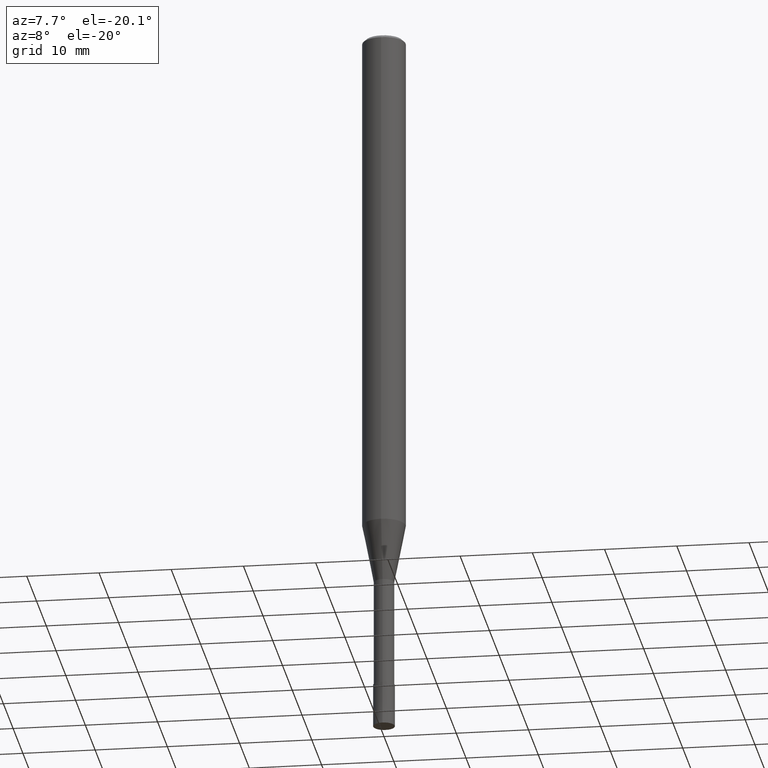
[diagram: clean part render]
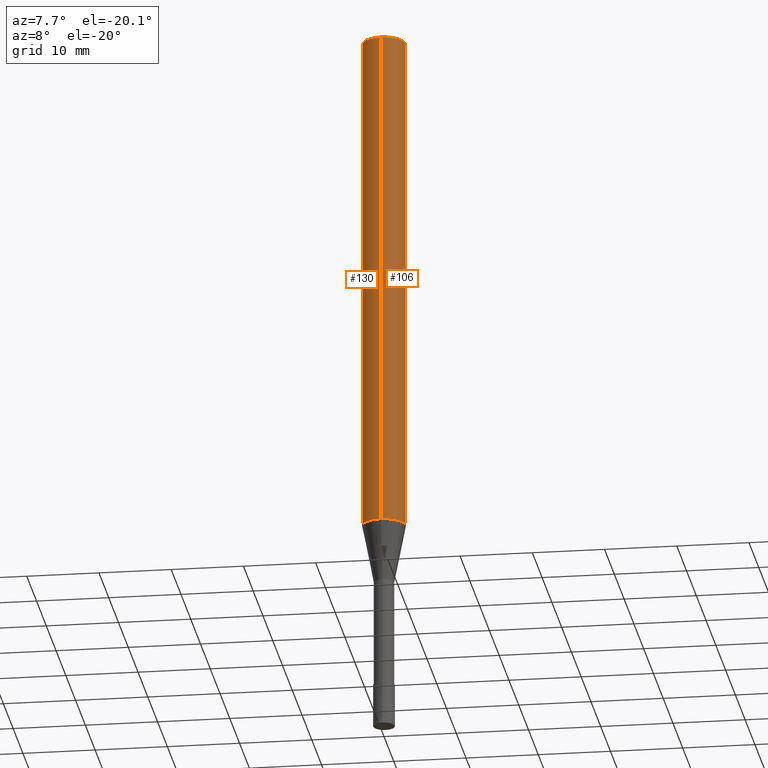
[diagram: same view with one multi-face feature highlighted, each face labeled with its STEP entity id]
A machine part, auxiliary view. The highlighted faces form ONE feature: a constant-radius fillet chain: 2 tangent blend faces with common blend radius 3 mm. The faces share edges in the B-rep.
Their STEP definitions:
[1] entity #130 (Cylinder):
#94=EDGE_CURVE('',#208,#142,#232,.T.);
#104=VERTEX_POINT('',#243);
#130=ADVANCED_FACE('',(#273),#274,.T.);
#142=VERTEX_POINT('',#288);
#154=EDGE_CURVE('',#142,#104,#301,.T.);
#172=VERTEX_POINT('',#320);
#192=EDGE_CURVE('',#208,#172,#344,.T.);
#200=EDGE_CURVE('',#104,#172,#352,.T.);
#208=VERTEX_POINT('',#361);
#232=LINE('',#378,#379);
#243=CARTESIAN_POINT('',(0.0,3.0,-0.400000000000006));
#273=FACE_OUTER_BOUND('',#427,.T.);
#274=CYLINDRICAL_SURFACE('',#428,3.0);
#288=CARTESIAN_POINT('',(3.67381906146713E-016,-3.0,-0.400000000000006));
#301=CIRCLE('',#463,3.0);
#320=CARTESIAN_POINT('',(0.0,3.0,-70.769));
#344=CIRCLE('',#520,3.0);
#352=LINE('',#529,#530);
#361=CARTESIAN_POINT('',(3.67381906146713E-016,-3.0,-70.769));
#378=CARTESIAN_POINT('',(3.67381906146713E-016,-3.0,-35.5845));
#379=VECTOR('',#550,1.0);
#427=EDGE_LOOP('',(#604,#605,#606,#607));
#428=AXIS2_PLACEMENT_3D('',#608,#609,#610);
#463=AXIS2_PLACEMENT_3D('',#644,#645,#646);
#520=AXIS2_PLACEMENT_3D('',#695,#696,#697);
#529=CARTESIAN_POINT('',(-3.67381906146713E-016,3.0,-35.5845));
#530=VECTOR('',#702,1.0);
#550=DIRECTION('',(-0.0,-0.0,1.0));
#604=ORIENTED_EDGE('',*,*,#200,.T.);
#605=ORIENTED_EDGE('',*,*,#192,.F.);
#606=ORIENTED_EDGE('',*,*,#94,.T.);
#607=ORIENTED_EDGE('',*,*,#154,.T.);
#608=CARTESIAN_POINT('',(0.0,0.0,-35.5845));
#609=DIRECTION('',(-0.0,-0.0,1.0));
#610=DIRECTION('',(0.0,1.0,0.0));
#644=CARTESIAN_POINT('',(0.0,0.0,-0.400000000000006));
#645=DIRECTION('',(0.0,0.0,-1.0));
#646=DIRECTION('',(0.0,1.0,0.0));
#695=CARTESIAN_POINT('',(0.0,0.0,-70.769));
#696=DIRECTION('',(0.0,0.0,-1.0));
#697=DIRECTION('',(0.0,1.0,0.0));
#702=DIRECTION('',(0.0,0.0,-1.0));
[2] entity #106 (Cylinder):
#94=EDGE_CURVE('',#208,#142,#232,.T.);
#102=EDGE_CURVE('',#172,#208,#241,.T.);
#104=VERTEX_POINT('',#243);
#106=ADVANCED_FACE('',(#245),#246,.T.);
#142=VERTEX_POINT('',#288);
#172=VERTEX_POINT('',#320);
#200=EDGE_CURVE('',#104,#172,#352,.T.);
#206=EDGE_CURVE('',#104,#142,#359,.T.);
#208=VERTEX_POINT('',#361);
#232=LINE('',#378,#379);
#241=CIRCLE('',#389,3.0);
#243=CARTESIAN_POINT('',(0.0,3.0,-0.400000000000006));
#245=FACE_OUTER_BOUND('',#393,.T.);
#246=CYLINDRICAL_SURFACE('',#394,3.0);
#288=CARTESIAN_POINT('',(3.67381906146713E-016,-3.0,-0.400000000000006));
#320=CARTESIAN_POINT('',(0.0,3.0,-70.769));
#352=LINE('',#529,#530);
#359=CIRCLE('',#538,3.0);
#361=CARTESIAN_POINT('',(3.67381906146713E-016,-3.0,-70.769));
#378=CARTESIAN_POINT('',(3.67381906146713E-016,-3.0,-35.5845));
#379=VECTOR('',#550,1.0);
#389=AXIS2_PLACEMENT_3D('',#557,#558,#559);
#393=EDGE_LOOP('',(#561,#562,#563,#564));
#394=AXIS2_PLACEMENT_3D('',#565,#566,#567);
#529=CARTESIAN_POINT('',(-3.67381906146713E-016,3.0,-35.5845));
#530=VECTOR('',#702,1.0);
#538=AXIS2_PLACEMENT_3D('',#711,#712,#713);
#550=DIRECTION('',(-0.0,-0.0,1.0));
#557=CARTESIAN_POINT('',(0.0,0.0,-70.769));
#558=DIRECTION('',(0.0,0.0,-1.0));
#559=DIRECTION('',(0.0,1.0,0.0));
#561=ORIENTED_EDGE('',*,*,#200,.F.);
#562=ORIENTED_EDGE('',*,*,#206,.T.);
#563=ORIENTED_EDGE('',*,*,#94,.F.);
#564=ORIENTED_EDGE('',*,*,#102,.F.);
#565=CARTESIAN_POINT('',(0.0,0.0,-35.5845));
#566=DIRECTION('',(-0.0,-0.0,1.0));
#567=DIRECTION('',(0.0,1.0,0.0));
#702=DIRECTION('',(0.0,0.0,-1.0));
#711=CARTESIAN_POINT('',(0.0,0.0,-0.400000000000006));
#712=DIRECTION('',(0.0,0.0,-1.0));
#713=DIRECTION('',(0.0,1.0,0.0));